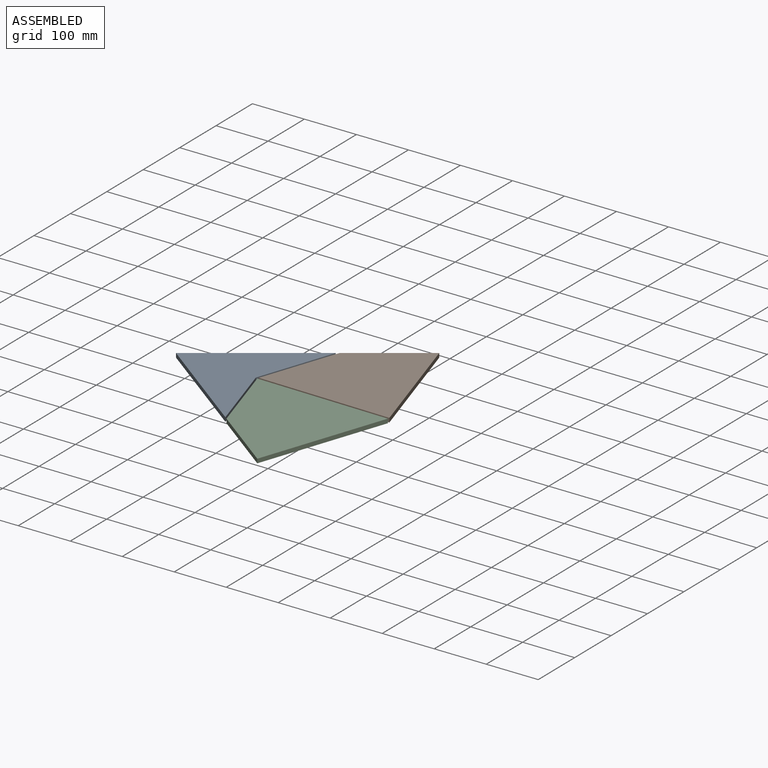
[diagram: assembled view]
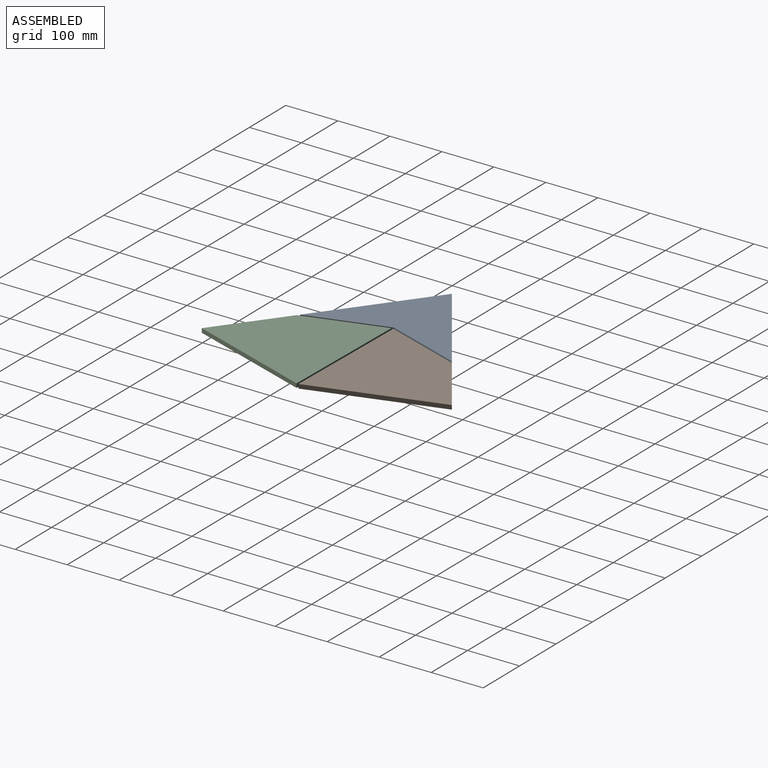
[diagram: assembled view, second angle]
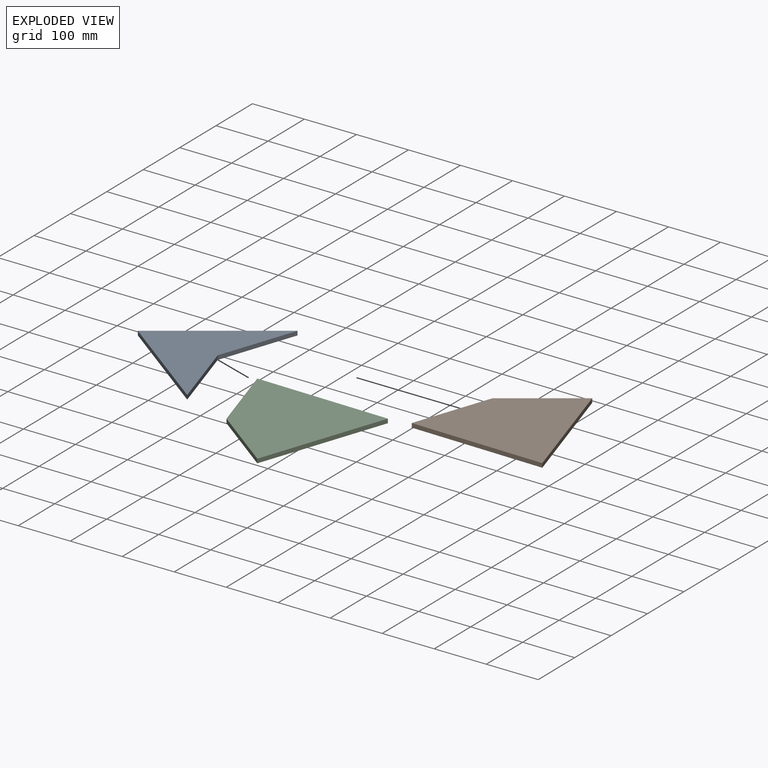
[diagram: exploded view]
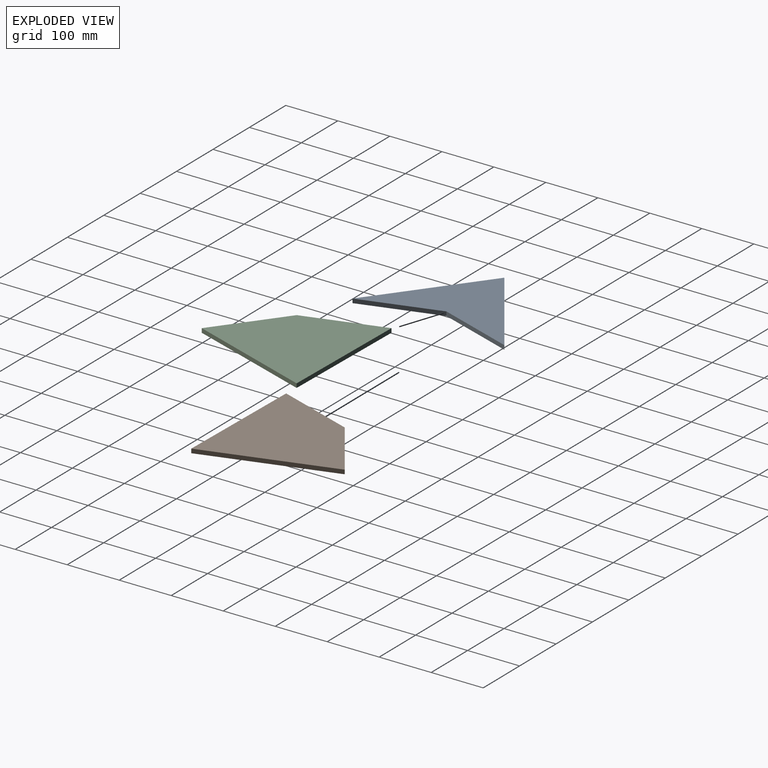
[diagram: exploded view, second angle]
ASSEMBLY  parts=3 mates=6
PART A: 6 faces, bbox 248.5x248.5x8 mm
  f0: plane 138.53x70.59mm, normal (0.89,0.45,0), area 1243.8mm2, adj f1,f3,f4,f5
  f1: plane 248.48x39.35mm, normal (-0.99,0.16,0), area 2012.6mm2, adj f0,f2,f4,f5
  f2: plane 248.48x39.35mm, normal (0.16,-0.99,0), area 2012.6mm2, adj f1,f3,f4,f5
  f3: plane 138.53x70.59mm, normal (0.45,0.89,0), area 1243.8mm2, adj f0,f2,f4,f5
  f4: plane 248.48x248.48mm, normal (0,0,1), area 22990.9mm2, adj f0,f1,f2,f3
  f5: plane 248.48x248.48mm, normal (0,0,-1), area 22990.9mm2, adj f0,f1,f2,f3
PART B: 6 faces, bbox 251.1x251.1x8 mm
  f0: plane 251.14x39.78mm, normal (0.99,-0.16,0), area 2034.2mm2, adj f1,f3,f4,f5
  f1: plane 251.14x39.78mm, normal (-0.16,0.99,0), area 2034.2mm2, adj f0,f2,f4,f5
  f2: plane 140.02x71.34mm, normal (-0.89,-0.45,0), area 1257.2mm2, adj f1,f3,f4,f5
  f3: plane 140.02x71.34mm, normal (-0.45,-0.89,0), area 1257.2mm2, adj f0,f2,f4,f5
  f4: plane 251.14x251.14mm, normal (0,0,1), area 38003.2mm2, adj f0,f1,f2,f3
  f5: plane 251.14x251.14mm, normal (0,0,-1), area 38003.2mm2, adj f0,f1,f2,f3
PART C: same geometry as B
PLACE A rot(axis=(0,0,-1),46deg) t=(47.12,239.02,0)mm
PLACE B rot(axis=(0,0,-1),82deg) t=(133.04,487.55,0)mm
PLACE C rot(axis=(0,0,-1),10deg) t=(124.02,-12.15,0)mm
MATE parallel B.f3 <-> A.f0  axis (-0.95,0.33,0) through (241.47,312.28,4)mm
MATE planar C.f3 <-> A.f2  axis (-0.6,-0.8,0) through (324.22,36.81,4)mm
MATE parallel A.f3 <-> C.f2  axis (0.96,0.29,0) through (234.28,161.8,4)mm
MATE planar B.f4 <-> A.f4  axis (0,0,1) through (347.67,325.82,8)mm
MATE planar C.f4 <-> A.f4  axis (0,0,1) through (344.16,142,8)mm
MATE planar B.f2 <-> A.f1  axis (-0.57,0.82,0) through (331.41,431.64,4)mm
